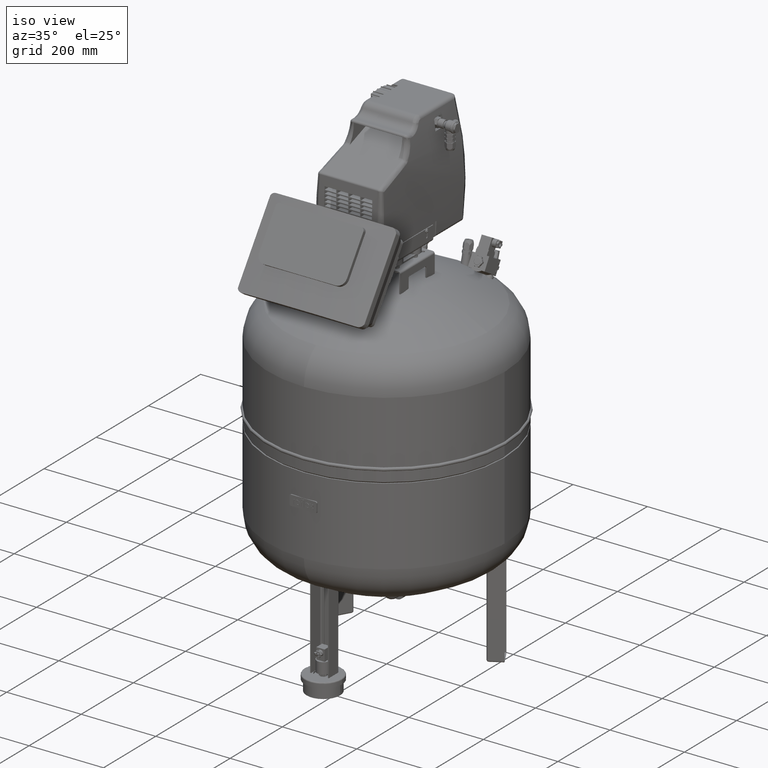
[diagram: clean part render]
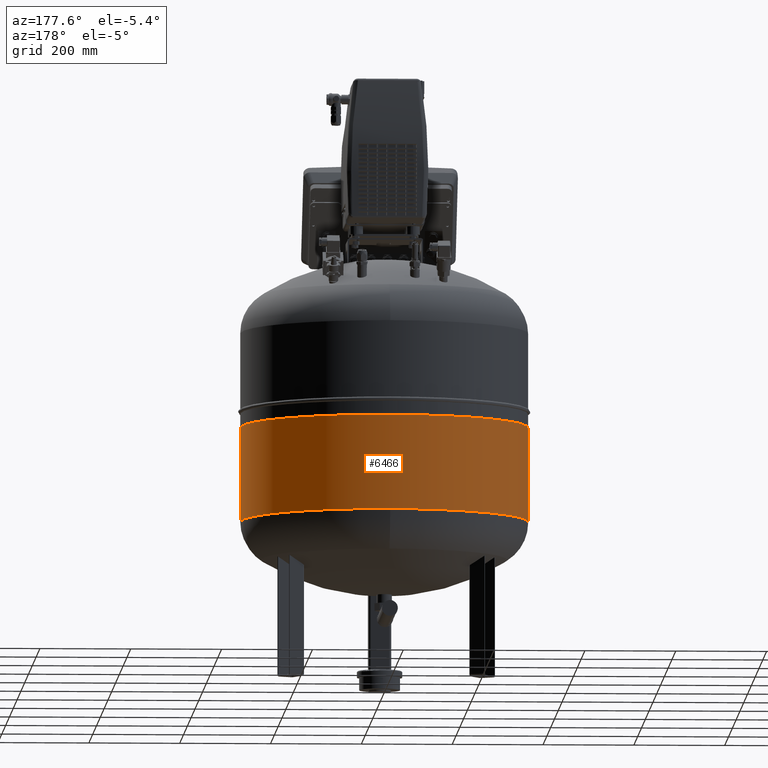
[diagram: tour spotlight — one face highlighted and labeled with its STEP entity id]
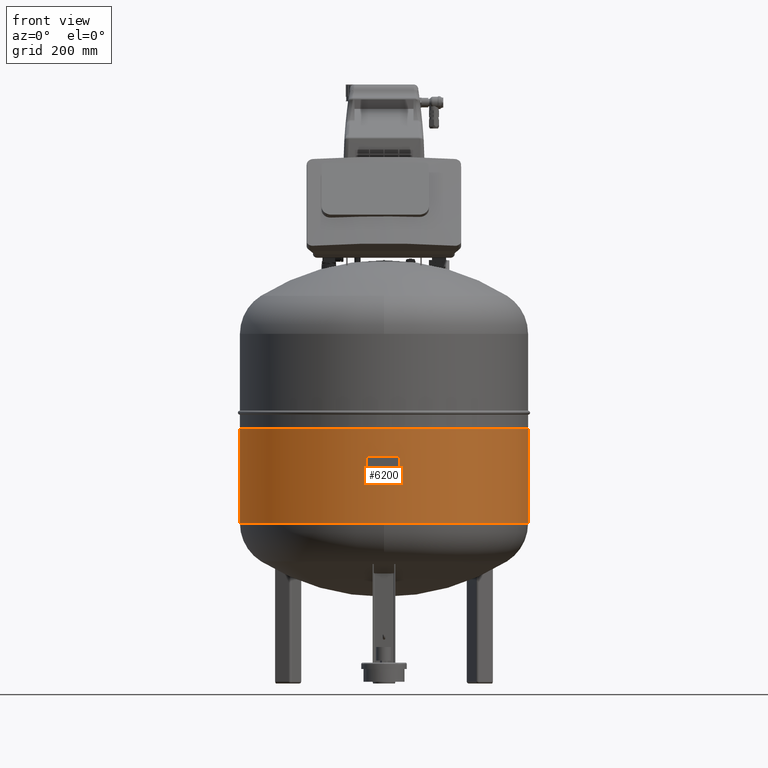
[diagram: tour spotlight — one face highlighted and labeled with its STEP entity id]
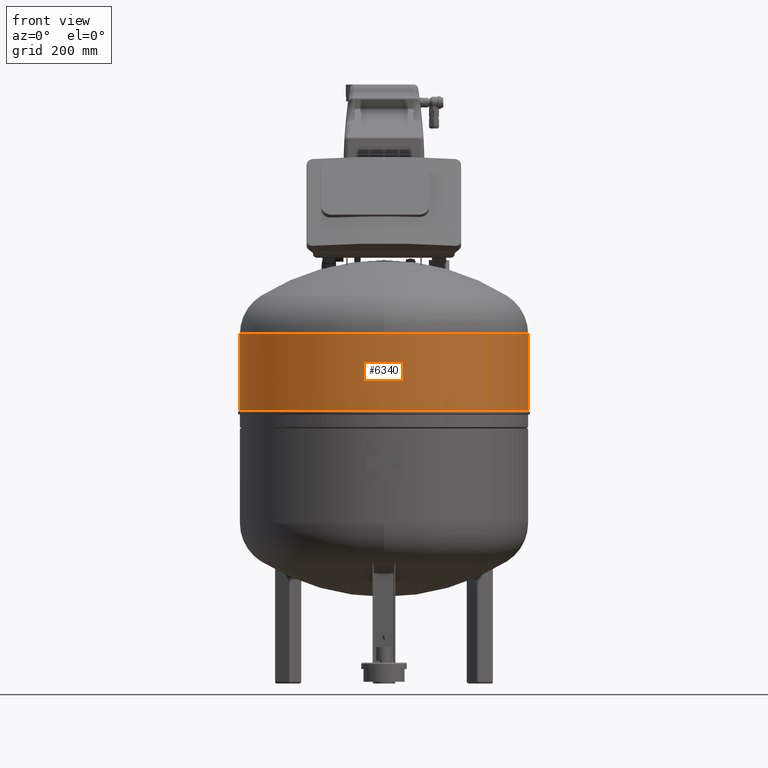
[diagram: tour spotlight — one face highlighted and labeled with its STEP entity id]
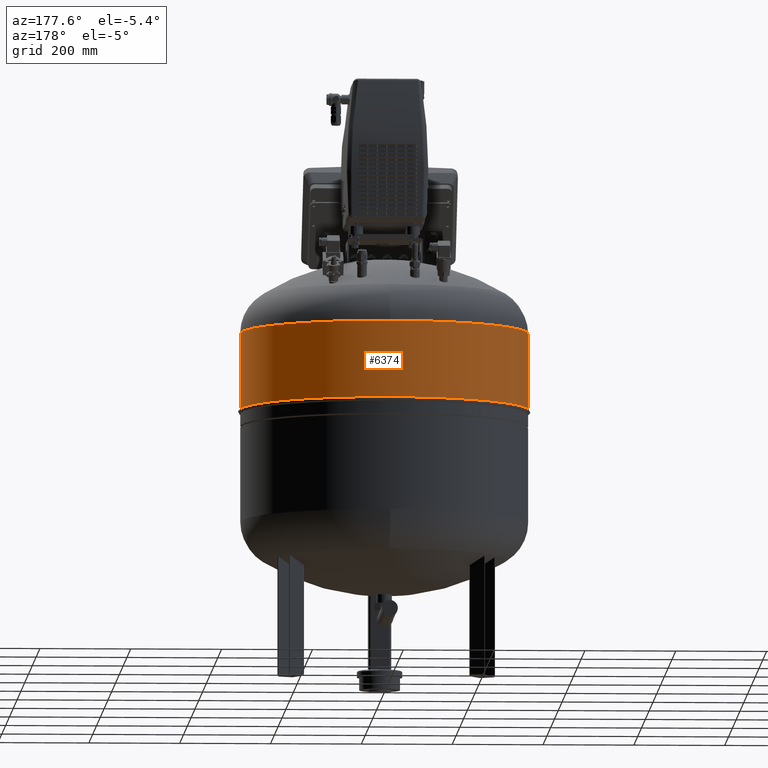
[diagram: tour spotlight — one face highlighted and labeled with its STEP entity id]
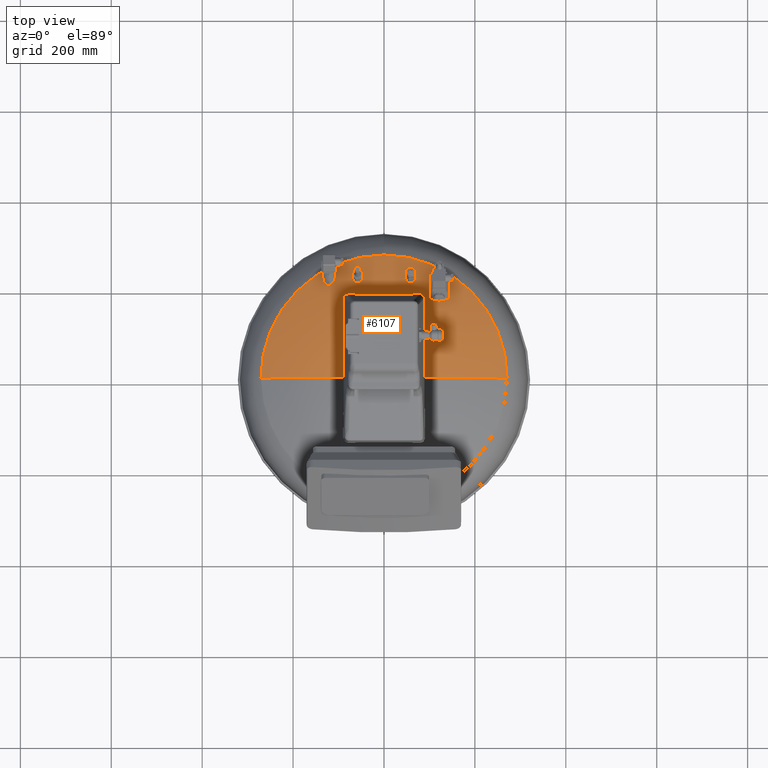
[diagram: tour spotlight — one face highlighted and labeled with its STEP entity id]
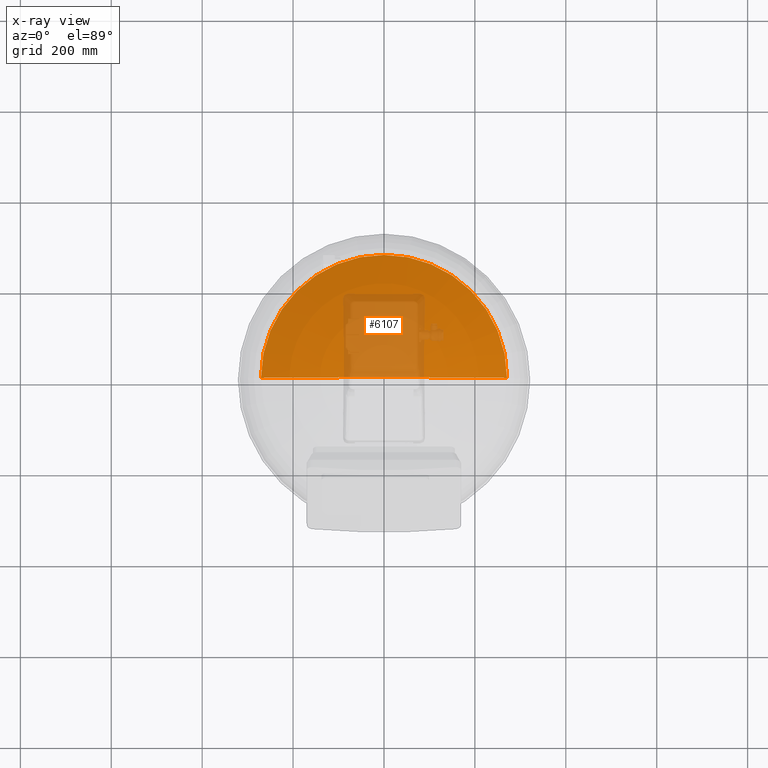
[diagram: x-ray of the same camera — body ghosted, this tour face saturated]
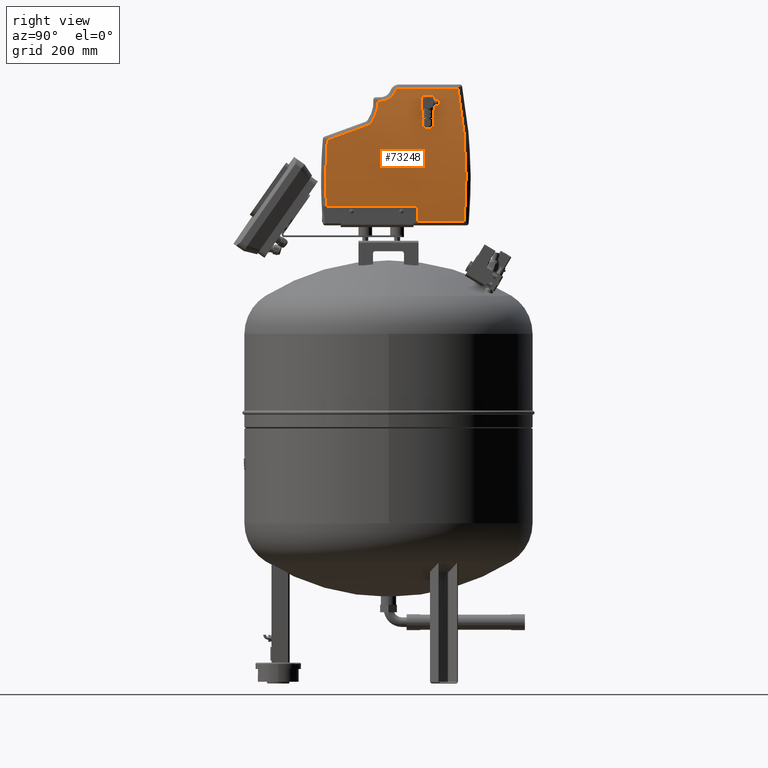
[diagram: tour spotlight — one face highlighted and labeled with its STEP entity id]
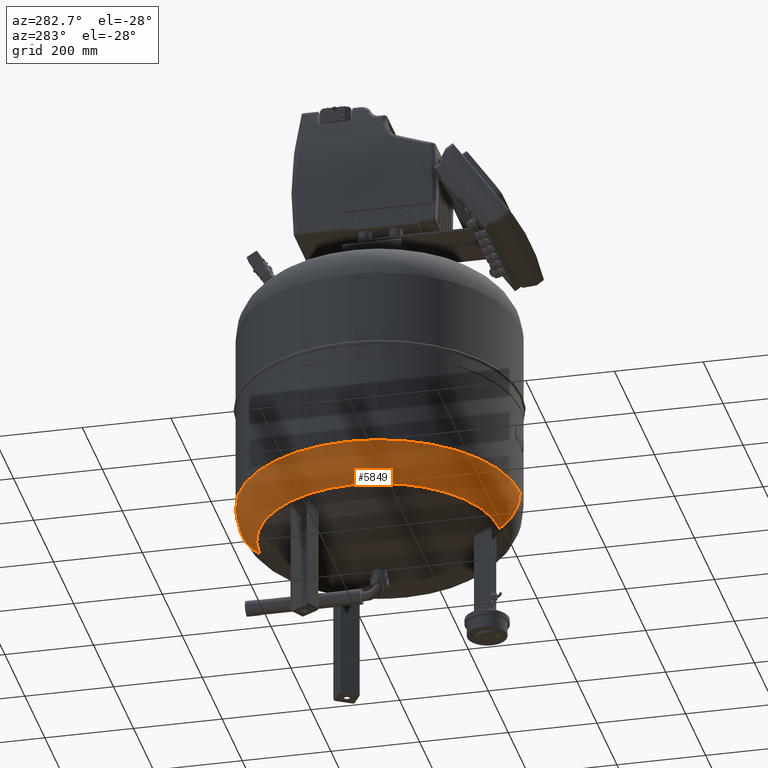
[diagram: tour spotlight — one face highlighted and labeled with its STEP entity id]
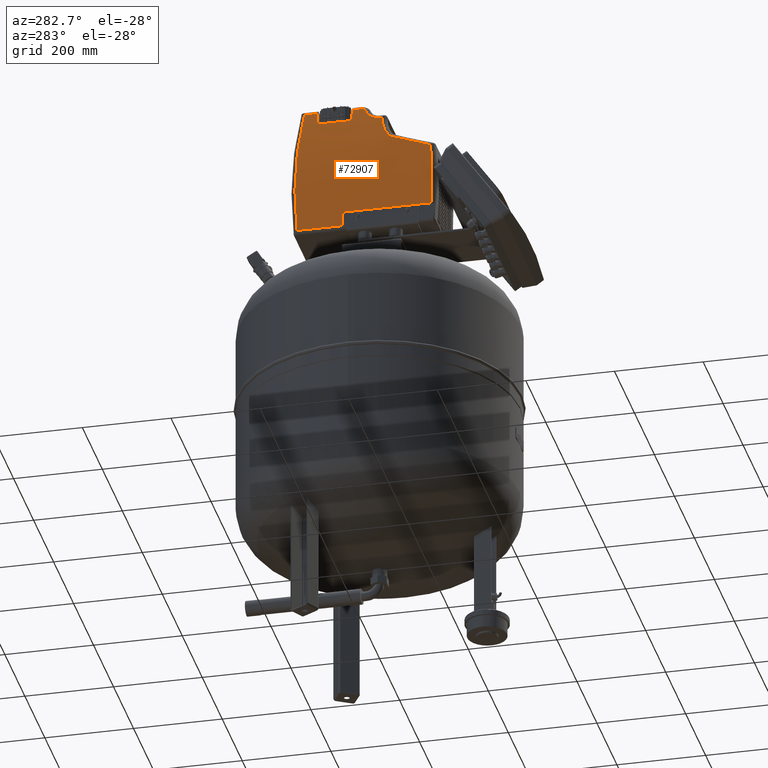
[diagram: tour spotlight — one face highlighted and labeled with its STEP entity id]
A machine part: a face-by-face anatomy tour. The part has 2542 B-rep faces; the first image is the clean iso view, then the 8 largest visible faces are spotlighted one at a time (largest first), each with its STEP entity span.

Face 1 — auxiliary view, entity #6466. In plain terms, the highlighted cylindrical surface (partial cylindrical patch) has radius 317 mm, axis along (-0, 0, -1).
Definition (entity closure, byte-faithful):
#6164=CARTESIAN_POINT('',(-317.0,0.0,353.00000000000011));
#6165=VERTEX_POINT('',#6164);
#6166=CARTESIAN_POINT('',(-316.99999999999994,0.0,561.0));
#6167=VERTEX_POINT('',#6166);
#6168=CARTESIAN_POINT('',(-317.0,0.0,353.00000000000011));
#6169=DIRECTION('',(0.0,0.0,1.0));
#6170=VECTOR('',#6169,207.99999999999989);
#6171=LINE('',#6168,#6170);
#6172=EDGE_CURVE('',#6165,#6167,#6171,.T.);
#6174=CARTESIAN_POINT('',(317.0,-3.882002E-014,352.99999999999989));
#6175=VERTEX_POINT('',#6174);
#6183=CARTESIAN_POINT('',(317.0,-3.882002E-014,560.99999999999989));
#6184=VERTEX_POINT('',#6183);
#6185=CARTESIAN_POINT('',(317.0,-3.882002E-014,352.99999999999989));
#6186=DIRECTION('',(0.0,0.0,1.0));
#6187=VECTOR('',#6186,208.0);
#6188=LINE('',#6185,#6187);
#6189=EDGE_CURVE('',#6175,#6184,#6188,.T.);
#6434=CARTESIAN_POINT('',(0.0,0.0,561.0));
#6435=DIRECTION('',(0.0,0.0,-1.0));
#6436=DIRECTION('',(-1.0,0.0,0.0));
#6437=AXIS2_PLACEMENT_3D('',#6434,#6435,#6436);
#6438=CIRCLE('',#6437,316.99999999999994);
#6439=EDGE_CURVE('',#6167,#6184,#6438,.T.);
#6449=CARTESIAN_POINT('',(-2.108031E-014,0.0,457.0));
#6450=DIRECTION('',(-2.026953E-016,0.0,-1.0));
#6451=DIRECTION('',(-1.0,0.0,0.0));
#6452=AXIS2_PLACEMENT_3D('',#6449,#6450,#6451);
#6453=CYLINDRICAL_SURFACE('',#6452,317.0);
#6454=ORIENTED_EDGE('',*,*,#6172,.T.);
#6455=ORIENTED_EDGE('',*,*,#6439,.T.);
#6456=ORIENTED_EDGE('',*,*,#6189,.F.);
#6457=CARTESIAN_POINT('',(-4.216062E-014,0.0,353.0));
#6458=DIRECTION('',(0.0,0.0,-1.0));
#6459=DIRECTION('',(-1.0,0.0,0.0));
#6460=AXIS2_PLACEMENT_3D('',#6457,#6458,#6459);
#6461=CIRCLE('',#6460,317.0);
#6462=EDGE_CURVE('',#6165,#6175,#6461,.T.);
#6463=ORIENTED_EDGE('',*,*,#6462,.F.);
#6464=EDGE_LOOP('',(#6454,#6455,#6456,#6463));
#6465=FACE_OUTER_BOUND('',#6464,.T.);
#6466=ADVANCED_FACE('',(#6465),#6453,.T.);

Face 2 — front view, entity #6200. In plain terms, the highlighted cylindrical surface (partial cylindrical patch) has radius 317 mm, axis along (-0, 0, -1).
Definition (entity closure, byte-faithful):
#6159=CARTESIAN_POINT('',(-2.108031E-014,0.0,457.0));
#6160=DIRECTION('',(-2.026953E-016,0.0,-1.0));
#6161=DIRECTION('',(-1.0,0.0,0.0));
#6162=AXIS2_PLACEMENT_3D('',#6159,#6160,#6161);
#6163=CYLINDRICAL_SURFACE('',#6162,317.0);
#6164=CARTESIAN_POINT('',(-317.0,0.0,353.00000000000011));
#6165=VERTEX_POINT('',#6164);
#6166=CARTESIAN_POINT('',(-316.99999999999994,0.0,561.0));
#6167=VERTEX_POINT('',#6166);
#6168=CARTESIAN_POINT('',(-317.0,0.0,353.00000000000011));
#6169=DIRECTION('',(0.0,0.0,1.0));
#6170=VECTOR('',#6169,207.99999999999989);
#6171=LINE('',#6168,#6170);
#6172=EDGE_CURVE('',#6165,#6167,#6171,.T.);
#6173=ORIENTED_EDGE('',*,*,#6172,.F.);
#6174=CARTESIAN_POINT('',(317.0,-3.882002E-014,352.99999999999989));
#6175=VERTEX_POINT('',#6174);
#6176=CARTESIAN_POINT('',(-4.216062E-014,0.0,353.0));
#6177=DIRECTION('',(0.0,0.0,-1.0));
#6178=DIRECTION('',(-1.0,0.0,0.0));
#6179=AXIS2_PLACEMENT_3D('',#6176,#6177,#6178);
#6180=CIRCLE('',#6179,317.0);
#6181=EDGE_CURVE('',#6175,#6165,#6180,.T.);
#6182=ORIENTED_EDGE('',*,*,#6181,.F.);
#6183=CARTESIAN_POINT('',(317.0,-3.882002E-014,560.99999999999989));
#6184=VERTEX_POINT('',#6183);
#6185=CARTESIAN_POINT('',(317.0,-3.882002E-014,352.99999999999989));
#6186=DIRECTION('',(0.0,0.0,1.0));
#6187=VECTOR('',#6186,208.0);
#6188=LINE('',#6185,#6187);
#6189=EDGE_CURVE('',#6175,#6184,#6188,.T.);
#6190=ORIENTED_EDGE('',*,*,#6189,.T.);
#6191=CARTESIAN_POINT('',(0.0,0.0,561.0));
#6192=DIRECTION('',(0.0,0.0,-1.0));
#6193=DIRECTION('',(-1.0,0.0,0.0));
#6194=AXIS2_PLACEMENT_3D('',#6191,#6192,#6193);
#6195=CIRCLE('',#6194,316.99999999999994);
#6196=EDGE_CURVE('',#6184,#6167,#6195,.T.);
#6197=ORIENTED_EDGE('',*,*,#6196,.T.);
#6198=EDGE_LOOP('',(#6173,#6182,#6190,#6197));
#6199=FACE_OUTER_BOUND('',#6198,.T.);
#6200=ADVANCED_FACE('',(#6199),#6163,.T.);

Face 3 — front view, entity #6340. In plain terms, the highlighted cylindrical surface (partial cylindrical patch) has radius 317 mm, axis along (-0, 0, -1).
Definition (entity closure, byte-faithful):
#6280=CARTESIAN_POINT('',(-316.99999999999994,0.0,600.40000000000009));
#6281=VERTEX_POINT('',#6280);
#6290=CARTESIAN_POINT('',(316.99999999999994,-3.882002E-014,600.39999999999986));
#6291=VERTEX_POINT('',#6290);
#6299=CARTESIAN_POINT('',(7.986194E-015,0.0,600.39999999999998));
#6300=DIRECTION('',(0.0,0.0,-1.0));
#6301=DIRECTION('',(-1.0,0.0,0.0));
#6302=AXIS2_PLACEMENT_3D('',#6299,#6300,#6301);
#6303=CIRCLE('',#6302,316.99999999999994);
#6304=EDGE_CURVE('',#6291,#6281,#6303,.T.);
#6309=CARTESIAN_POINT('',(2.507341E-014,0.0,684.70000000000005));
#6310=DIRECTION('',(-2.026953E-016,0.0,-1.0));
#6311=DIRECTION('',(-1.0,0.0,0.0));
#6312=AXIS2_PLACEMENT_3D('',#6309,#6310,#6311);
#6313=CYLINDRICAL_SURFACE('',#6312,316.99999999999994);
#6314=CARTESIAN_POINT('',(-317.0,0.0,769.00000000000011));
#6315=VERTEX_POINT('',#6314);
#6316=CARTESIAN_POINT('',(-316.99999999999994,0.0,600.40000000000009));
#6317=DIRECTION('',(0.0,0.0,1.0));
#6318=VECTOR('',#6317,168.60000000000002);
#6319=LINE('',#6316,#6318);
#6320=EDGE_CURVE('',#6281,#6315,#6319,.T.);
#6321=ORIENTED_EDGE('',*,*,#6320,.F.);
#6322=ORIENTED_EDGE('',*,*,#6304,.F.);
#6323=CARTESIAN_POINT('',(316.99999999999994,-3.882002E-014,769.0));
#6324=VERTEX_POINT('',#6323);
#6325=CARTESIAN_POINT('',(316.99999999999994,-3.882002E-014,600.39999999999986));
#6326=DIRECTION('',(0.0,0.0,1.0));
#6327=VECTOR('',#6326,168.60000000000014);
#6328=LINE('',#6325,#6327);
#6329=EDGE_CURVE('',#6291,#6324,#6328,.T.);
#6330=ORIENTED_EDGE('',*,*,#6329,.T.);
#6331=CARTESIAN_POINT('',(4.216062E-014,0.0,769.00000000000011));
#6332=DIRECTION('',(0.0,0.0,-1.0));
#6333=DIRECTION('',(-1.0,0.0,0.0));
#6334=AXIS2_PLACEMENT_3D('',#6331,#6332,#6333);
#6335=CIRCLE('',#6334,317.0);
#6336=EDGE_CURVE('',#6324,#6315,#6335,.T.);
#6337=ORIENTED_EDGE('',*,*,#6336,.T.);
#6338=EDGE_LOOP('',(#6321,#6322,#6330,#6337));
#6339=FACE_OUTER_BOUND('',#6338,.T.);
#6340=ADVANCED_FACE('',(#6339),#6313,.T.);

Face 4 — auxiliary view, entity #6374. In plain terms, the highlighted cylindrical surface (partial cylindrical patch) has radius 317 mm, axis along (-0, 0, -1).
Definition (entity closure, byte-faithful):
#6280=CARTESIAN_POINT('',(-316.99999999999994,0.0,600.40000000000009));
#6281=VERTEX_POINT('',#6280);
#6290=CARTESIAN_POINT('',(316.99999999999994,-3.882002E-014,600.39999999999986));
#6291=VERTEX_POINT('',#6290);
#6314=CARTESIAN_POINT('',(-317.0,0.0,769.00000000000011));
#6315=VERTEX_POINT('',#6314);
#6316=CARTESIAN_POINT('',(-316.99999999999994,0.0,600.40000000000009));
#6317=DIRECTION('',(0.0,0.0,1.0));
#6318=VECTOR('',#6317,168.60000000000002);
#6319=LINE('',#6316,#6318);
#6320=EDGE_CURVE('',#6281,#6315,#6319,.T.);
#6323=CARTESIAN_POINT('',(316.99999999999994,-3.882002E-014,769.0));
#6324=VERTEX_POINT('',#6323);
#6325=CARTESIAN_POINT('',(316.99999999999994,-3.882002E-014,600.39999999999986));
#6326=DIRECTION('',(0.0,0.0,1.0));
#6327=VECTOR('',#6326,168.60000000000014);
#6328=LINE('',#6325,#6327);
#6329=EDGE_CURVE('',#6291,#6324,#6328,.T.);
#6346=CARTESIAN_POINT('',(4.216062E-014,0.0,769.00000000000011));
#6347=DIRECTION('',(0.0,0.0,-1.0));
#6348=DIRECTION('',(-1.0,0.0,0.0));
#6349=AXIS2_PLACEMENT_3D('',#6346,#6347,#6348);
#6350=CIRCLE('',#6349,317.0);
#6351=EDGE_CURVE('',#6315,#6324,#6350,.T.);
#6357=CARTESIAN_POINT('',(2.507341E-014,0.0,684.70000000000005));
#6358=DIRECTION('',(-2.026953E-016,0.0,-1.0));
#6359=DIRECTION('',(-1.0,0.0,0.0));
#6360=AXIS2_PLACEMENT_3D('',#6357,#6358,#6359);
#6361=CYLINDRICAL_SURFACE('',#6360,316.99999999999994);
#6362=ORIENTED_EDGE('',*,*,#6320,.T.);
#6363=ORIENTED_EDGE('',*,*,#6351,.T.);
#6364=ORIENTED_EDGE('',*,*,#6329,.F.);
#6365=CARTESIAN_POINT('',(7.986194E-015,0.0,600.39999999999998));
#6366=DIRECTION('',(0.0,0.0,-1.0));
#6367=DIRECTION('',(-1.0,0.0,0.0));
#6368=AXIS2_PLACEMENT_3D('',#6365,#6366,#6367);
#6369=CIRCLE('',#6368,316.99999999999994);
#6370=EDGE_CURVE('',#6281,#6291,#6369,.T.);
#6371=ORIENTED_EDGE('',*,*,#6370,.F.);
#6372=EDGE_LOOP('',(#6362,#6363,#6364,#6371));
#6373=FACE_OUTER_BOUND('',#6372,.T.);
#6374=ADVANCED_FACE('',(#6373),#6361,.T.);

Face 5 — top view, entity #6107. An x-ray twin of the same camera follows (body ghosted, this face saturated) — the face is partly hidden behind the body. In plain terms, the highlighted spherical surface has radius 509 mm.
Definition (entity closure, byte-faithful):
#6011=CARTESIAN_POINT('',(8.065826E-015,270.63902439024383,853.08643968129763));
#6012=VERTEX_POINT('',#6011);
#6037=CARTESIAN_POINT('',(-270.63902439024383,2.385415E-014,853.08643968129763));
#6038=VERTEX_POINT('',#6037);
#6046=CARTESIAN_POINT('',(-7.495146E-015,2.385415E-014,853.08643968129752));
#6047=DIRECTION('',(0.0,0.0,-1.0));
#6048=DIRECTION('',(-1.0,0.0,0.0));
#6049=AXIS2_PLACEMENT_3D('',#6046,#6047,#6048);
#6050=CIRCLE('',#6049,270.63902439024383);
#6051=EDGE_CURVE('',#6038,#6012,#6050,.T.);
#6061=CARTESIAN_POINT('',(-1.317408E-013,1.558363E-013,931.0));
#6062=VERTEX_POINT('',#6061);
#6063=CARTESIAN_POINT('',(270.63902439024383,1.558363E-013,853.08643968129752));
#6064=VERTEX_POINT('',#6063);
#6065=CARTESIAN_POINT('',(-1.005746E-013,1.558363E-013,421.99999999999994));
#6066=DIRECTION('',(0.0,1.0,0.0));
#6067=DIRECTION('',(1.0,0.0,0.0));
#6068=AXIS2_PLACEMENT_3D('',#6065,#6066,#6067);
#6069=CIRCLE('',#6068,509.00000000000006);
#6070=EDGE_CURVE('',#6062,#6064,#6069,.T.);
#6072=CARTESIAN_POINT('',(-1.005746E-013,1.558363E-013,421.99999999999994));
#6073=DIRECTION('',(0.0,-1.0,0.0));
#6074=DIRECTION('',(-1.0,0.0,0.0));
#6075=AXIS2_PLACEMENT_3D('',#6072,#6073,#6074);
#6076=CIRCLE('',#6075,509.00000000000006);
#6077=EDGE_CURVE('',#6062,#6038,#6076,.T.);
#6090=CARTESIAN_POINT('',(-1.005746E-013,1.558363E-013,421.99999999999994));
#6091=DIRECTION('',(0.0,0.0,1.0));
#6092=DIRECTION('',(1.0,0.0,0.0));
#6093=AXIS2_PLACEMENT_3D('',#6090,#6091,#6092);
#6094=SPHERICAL_SURFACE('',#6093,509.00000000000006);
#6095=ORIENTED_EDGE('',*,*,#6070,.T.);
#6096=CARTESIAN_POINT('',(-7.495146E-015,2.385415E-014,853.08643968129752));
#6097=DIRECTION('',(0.0,0.0,-1.0));
#6098=DIRECTION('',(-1.0,0.0,0.0));
#6099=AXIS2_PLACEMENT_3D('',#6096,#6097,#6098);
#6100=CIRCLE('',#6099,270.63902439024383);
#6101=EDGE_CURVE('',#6012,#6064,#6100,.T.);
#6102=ORIENTED_EDGE('',*,*,#6101,.F.);
#6103=ORIENTED_EDGE('',*,*,#6051,.F.);
#6104=ORIENTED_EDGE('',*,*,#6077,.F.);
#6105=EDGE_LOOP('',(#6095,#6102,#6103,#6104));
#6106=FACE_OUTER_BOUND('',#6105,.T.);
#6107=ADVANCED_FACE('',(#6106),#6094,.T.);

Face 6 — right view, entity #73248. In plain terms, the highlighted cylindrical surface (partial cylindrical patch) has radius 1323.98 mm, axis along (-0, -1, 0).
Definition (entity closure, byte-faithful):
#72593=CARTESIAN_POINT('',(88.601441545151232,64.994999999999919,1049.9999999999768));
#72594=VERTEX_POINT('',#72593);
#72595=CARTESIAN_POINT('',(86.691151156861395,64.994999999999919,1017.2934525354472));
#72596=VERTEX_POINT('',#72595);
#72597=CARTESIAN_POINT('',(-1233.9793513774807,64.995000000000147,1110.8388779159679));
#72598=DIRECTION('',(1.825887E-016,1.0,-1.422539E-017));
#72599=DIRECTION('',(-0.996978804846285,1.831420E-016,0.077674079893313));
#72600=AXIS2_PLACEMENT_3D('',#72597,#72598,#72599);
#72601=CIRCLE('',#72600,1323.9793513774807);
#72602=EDGE_CURVE('',#72594,#72596,#72601,.T.);
#72693=CARTESIAN_POINT('',(88.601441545151204,-136.8903313762531,1049.9999999999768));
#72694=VERTEX_POINT('',#72693);
#72695=CARTESIAN_POINT('',(88.601441545151204,-136.8903313762531,1049.9999999999768));
#72696=DIRECTION('',(0.0,1.0,0.0));
#72697=VECTOR('',#72696,201.88533137625302);
#72698=LINE('',#72695,#72697);
#72699=EDGE_CURVE('',#72694,#72594,#72698,.T.);
#73080=CARTESIAN_POINT('',(-1233.9793513774807,16.000000000000142,1110.8388779159679));
#73081=DIRECTION('',(-1.836970E-016,-1.0,0.0));
#73082=DIRECTION('',(-0.996978804846285,1.831420E-016,0.077674079893313));
#73083=AXIS2_PLACEMENT_3D('',#73080,#73081,#73082);
#73084=CYLINDRICAL_SURFACE('',#73083,1323.9793513774807);
#73085=ORIENTED_EDGE('',*,*,#72699,.T.);
#73086=ORIENTED_EDGE('',*,*,#72602,.T.);
#73087=CARTESIAN_POINT('',(86.691151156861423,166.84002823482629,1017.2934525354451));
#73088=VERTEX_POINT('',#73087);
#73089=CARTESIAN_POINT('',(86.691151156861423,166.84002823482629,1017.2934525354472));
#73090=DIRECTION('',(0.0,-1.0,0.0));
#73091=VECTOR('',#73090,101.84502823482637);
#73092=LINE('',#73089,#73091);
#73093=EDGE_CURVE('',#73088,#72596,#73092,.T.);
#73094=ORIENTED_EDGE('',*,*,#73093,.F.);
#73095=CARTESIAN_POINT('',(75.010674275461696,152.69538403177663,1309.500488739608));
#73096=VERTEX_POINT('',#73095);
#73097=CARTESIAN_POINT('',(75.010762962781769,152.69550527546929,1309.4999414908045));
#73098=CARTESIAN_POINT('',(75.749191174399471,153.57893988197421,1304.6343747078738));
#73099=CARTESIAN_POINT('',(76.461548993900777,154.43101745255777,1299.7577192433773));
#73100=CARTESIAN_POINT('',(80.658761252774326,159.45088918635182,1269.8547665451092));
#73101=CARTESIAN_POINT('',(83.47624808203517,162.81815925040431,1244.5646340836993));
#73102=CARTESIAN_POINT('',(86.866661126282992,166.87730527744262,1203.2577082243224));
#73103=CARTESIAN_POINT('',(87.885595526410754,168.09946727365732,1187.3201279941857));
#73104=CARTESIAN_POINT('',(88.98066868086508,169.41888502649036,1163.3922541097099));
#73105=CARTESIAN_POINT('',(89.27361128093321,169.7732097195582,1155.4130024747235));
#73106=CARTESIAN_POINT('',(89.848011111689971,170.47262018923644,1134.6318474367647));
#73107=CARTESIAN_POINT('',(90.016545000868064,170.68393070829498,1121.8180408898106));
#73108=CARTESIAN_POINT('',(89.970200682689978,170.65961550538091,1088.4860353473566));
#73109=CARTESIAN_POINT('',(89.463987559396571,170.07910626780213,1067.9582769109406));
#73110=CARTESIAN_POINT('',(88.000738427995316,168.37361489012565,1037.4091205141578));
#73111=CARTESIAN_POINT('',(87.40245378163371,167.67397813078506,1027.3388147734222));
#73112=CARTESIAN_POINT('',(86.690899334655143,166.83976328187228,1017.2935985766566));
#73113=B_SPLINE_CURVE_WITH_KNOTS('',3,(#73097,#73098,#73099,#73100,#73101,#73102,#73103,#73104,#73105,#73106,#73107,#73108,#73109,#73110,#73111,#73112),.UNSPECIFIED.,.F.,.U.,(4,2,2,2,2,2,2,4),(5.175708728468305,6.663674528679406,14.279302561455872,19.039070081941162,21.418953842183807,25.226767858572039,31.319270284793209,34.322254463356607),.UNSPECIFIED.);
#73114=EDGE_CURVE('',#73096,#73088,#73113,.T.);
#73115=ORIENTED_EDGE('',*,*,#73114,.F.);
#73116=CARTESIAN_POINT('',(75.010674275462975,23.378822094593176,1309.5004887396003));
#73117=VERTEX_POINT('',#73116);
#73118=CARTESIAN_POINT('',(75.010674275462975,23.378822094593176,1309.5004887396003));
#73119=DIRECTION('',(0.0,1.0,0.0));
#73120=VECTOR('',#73119,129.31656193718345);
#73121=LINE('',#73118,#73120);
#73122=EDGE_CURVE('',#73117,#73096,#73121,.T.);
#73123=ORIENTED_EDGE('',*,*,#73122,.F.);
#73124=CARTESIAN_POINT('',(75.968142067331371,14.062405185042877,1303.0858214328646));
#73125=VERTEX_POINT('',#73124);
#73126=CARTESIAN_POINT('',(75.968142067331371,14.062405185042877,1303.0858214328646));
#73127=CARTESIAN_POINT('',(75.774639208175472,14.572791692858033,1304.4043265840448));
#73128=CARTESIAN_POINT('',(75.594013550638465,15.368017924427505,1305.6206469069359));
#73129=CARTESIAN_POINT('',(75.31106009799214,17.281877947123149,1307.5131370832557));
#73130=CARTESIAN_POINT('',(75.200384289232829,18.38269078104193,1308.2470566633378));
#73131=CARTESIAN_POINT('',(75.079804678601135,20.300030723949845,1309.0446928820934));
#73132=CARTESIAN_POINT('',(75.046436797480482,21.082352565038406,1309.2647430025788));
#73133=CARTESIAN_POINT('',(75.016423868216947,22.37686135668244,1309.4626156414724));
#73134=CARTESIAN_POINT('',(75.010674275463259,22.879657423610439,1309.5004887396008));
#73135=CARTESIAN_POINT('',(75.010674275463259,23.378822094593176,1309.5004887396008));
#73136=B_SPLINE_CURVE_WITH_KNOTS('',3,(#73126,#73127,#73128,#73129,#73130,#73131,#73132,#73133,#73134,#73135),.UNSPECIFIED.,.F.,.U.,(4,2,2,2,4),(0.0,0.425288299677221,0.8086467669919,1.048245809063575,1.197995210358371),.UNSPECIFIED.);
#73137=EDGE_CURVE('',#73125,#73117,#73136,.T.);
#73138=ORIENTED_EDGE('',*,*,#73137,.F.);
#73139=CARTESIAN_POINT('',(78.991967721078936,-17.703577952971813,1281.2138705015077));
#73140=VERTEX_POINT('',#73139);
#73141=CARTESIAN_POINT('',(78.991967721078936,-17.703577952971813,1281.2138705015077));
#73142=CARTESIAN_POINT('',(78.991967721078936,-12.872934264143026,1281.2138705015077));
#73143=CARTESIAN_POINT('',(78.856169250862393,-8.026455301410891,1282.2691123584559));
#73144=CARTESIAN_POINT('',(78.351409843855492,0.337770782146578,1286.0890785328079));
#73145=CARTESIAN_POINT('',(78.00029727847047,4.00334899919531,1288.7178420405432));
#73146=CARTESIAN_POINT('',(77.290579667260403,8.860782495330369,1293.8593023758297));
#73147=CARTESIAN_POINT('',(76.978800238860231,10.510488883908494,1296.0842229453101));
#73148=CARTESIAN_POINT('',(76.424662485137617,12.715649074465688,1299.9549934404354));
#73149=CARTESIAN_POINT('',(76.200315151836435,13.45002141807359,1301.5038220287179));
#73150=CARTESIAN_POINT('',(75.968142067331371,14.062405185042877,1303.0858214328646));
#73151=B_SPLINE_CURVE_WITH_KNOTS('',3,(#73141,#73142,#73143,#73144,#73145,#73146,#73147,#73148,#73149,#73150),.UNSPECIFIED.,.F.,.U.,(4,2,2,2,4),(0.0,1.449193106648585,2.755508019683932,3.571954840331023,4.082234103235455),.UNSPECIFIED.);
#73152=EDGE_CURVE('',#73140,#73125,#73151,.T.);
#73153=ORIENTED_EDGE('',*,*,#73152,.F.);
#73154=CARTESIAN_POINT('',(78.991967721078964,-22.870510156187578,1281.2138705015079));
#73155=VERTEX_POINT('',#73154);
#73156=CARTESIAN_POINT('',(78.991967721078922,-22.870510156187578,1281.2138705015077));
#73157=DIRECTION('',(0.0,1.0,0.0));
#73158=VECTOR('',#73157,5.166932203215765);
#73159=LINE('',#73156,#73158);
#73160=EDGE_CURVE('',#73155,#73140,#73159,.T.);
#73161=ORIENTED_EDGE('',*,*,#73160,.F.);
#73162=CARTESIAN_POINT('',(84.20194266078903,-37.948665745968441,1234.6104373370545));
#73163=VERTEX_POINT('',#73162);
#73164=CARTESIAN_POINT('',(84.20194266078903,-37.948665745968441,1234.6104373370545));
#73165=CARTESIAN_POINT('',(83.453209226751483,-32.278544173793847,1242.5845342264015));
#73166=CARTESIAN_POINT('',(82.514354542700772,-28.001995038342869,1251.752209261716));
#73167=CARTESIAN_POINT('',(80.688490253723415,-23.827392375093353,1267.722756467861));
#73168=CARTESIAN_POINT('',(79.867747758794422,-22.928401493692576,1274.4642158946417));
#73169=CARTESIAN_POINT('',(78.991955219558463,-22.870529006692635,1281.2139404177146));
#73170=B_SPLINE_CURVE_WITH_KNOTS('',3,(#73164,#73165,#73166,#73167,#73168,#73169),.UNSPECIFIED.,.F.,.U.,(4,2,4),(0.0,2.929139542646406,4.937938804636223),.UNSPECIFIED.);
#73171=EDGE_CURVE('',#73163,#73155,#73170,.T.);
#73172=ORIENTED_EDGE('',*,*,#73171,.F.);
#73173=CARTESIAN_POINT('',(84.858153322598696,-47.366049054652279,1227.4105686062994));
#73174=VERTEX_POINT('',#73173);
#73175=CARTESIAN_POINT('',(84.858153322598696,-47.366049054652279,1227.4105686062994));
#73176=CARTESIAN_POINT('',(84.815011293705169,-46.035165007291511,1227.8986573128859));
#73177=CARTESIAN_POINT('',(84.758538704623305,-44.74600306327315,1228.534623010823));
#73178=CARTESIAN_POINT('',(84.628055117474048,-42.458637744862784,1229.9871402117074));
#73179=CARTESIAN_POINT('',(84.556664386996033,-41.446473828201619,1230.7758862215198));
#73180=CARTESIAN_POINT('',(84.425031228073181,-39.928972722004431,1232.2123288658595));
#73181=CARTESIAN_POINT('',(84.370746594143554,-39.377724939186322,1232.8008692765477));
#73182=CARTESIAN_POINT('',(84.277360401101447,-38.544111576846802,1233.8051953627009));
#73183=CARTESIAN_POINT('',(84.240202474099704,-38.238405435607405,1234.202965940108));
#73184=CARTESIAN_POINT('',(84.20194266078903,-37.948665745968441,1234.6104373370545));
#73185=B_SPLINE_CURVE_WITH_KNOTS('',3,(#73175,#73176,#73177,#73178,#73179,#73180,#73181,#73182,#73183,#73184),.UNSPECIFIED.,.F.,.U.,(4,2,2,2,4),(0.0,0.425083278759825,0.808256938486993,1.047740475816473,1.197417686647397),.UNSPECIFIED.);
#73186=EDGE_CURVE('',#73174,#73163,#73185,.T.);
#73187=ORIENTED_EDGE('',*,*,#73186,.F.);
#73188=CARTESIAN_POINT('',(87.295067870577213,-134.5751554767904,1195.4274818448775));
#73189=VERTEX_POINT('',#73188);
#73190=CARTESIAN_POINT('',(-1233.9793513774807,-365.22508045632901,1110.8388779159679));
#73191=DIRECTION('',(-1.492042E-016,-0.344315519300506,0.938853994595978));
#73192=DIRECTION('',(1.092149E-016,0.938853994595977,0.344315519300505));
#73193=AXIS2_PLACEMENT_3D('',#73190,#73191,#73192);
#73194=ELLIPSE('',#73193,3845.2502927175988,1323.979351377481);
#73195=EDGE_CURVE('',#73189,#73174,#73194,.T.);
#73196=ORIENTED_EDGE('',*,*,#73195,.F.);
#73197=CARTESIAN_POINT('',(88.601418660295366,-136.89031026926349,1049.9995772660857));
#73198=CARTESIAN_POINT('',(89.660823300275638,-138.02377199539691,1073.0304808424064));
#73199=CARTESIAN_POINT('',(90.119073835978782,-138.44490755997126,1096.1010885454452));
#73200=CARTESIAN_POINT('',(89.875831982586988,-137.95358120155615,1134.7237500115871));
#73201=CARTESIAN_POINT('',(89.50364661138704,-137.43088998401149,1150.2899916399738));
#73202=CARTESIAN_POINT('',(88.533597214534069,-136.15845459943452,1173.6194644600737));
#73203=CARTESIAN_POINT('',(88.141675589328457,-135.65296893456897,1181.3926069017764));
#73204=CARTESIAN_POINT('',(87.557631641494396,-134.90853713373767,1191.2485183987806));
#73205=CARTESIAN_POINT('',(87.428813645512491,-134.7447742592154,1193.3383162332157));
#73206=CARTESIAN_POINT('',(87.295060232162058,-134.57514743083911,1195.4274816699667));
#73207=B_SPLINE_CURVE_WITH_KNOTS('',3,(#73197,#73198,#73199,#73200,#73201,#73202,#73203,#73204,#73205,#73206),.UNSPECIFIED.,.F.,.U.,(4,2,2,2,4),(7.009786163870219,13.87429059637191,18.499054128495882,20.811435894557867,21.433886595432323),.UNSPECIFIED.);
#73208=EDGE_CURVE('',#72694,#73189,#73207,.T.);
#73209=ORIENTED_EDGE('',*,*,#73208,.F.);
#73210=EDGE_LOOP('',(#73085,#73086,#73094,#73115,#73123,#73138,#73153,#73161,#73172,#73187,#73196,#73209));
#73211=FACE_OUTER_BOUND('',#73210,.T.);
#73212=CARTESIAN_POINT('',(81.227216352497408,71.770557485784849,1262.9999999999766));
#73213=VERTEX_POINT('',#73212);
#73214=CARTESIAN_POINT('',(77.408710362837724,71.770557485784849,1292.9999999999764));
#73215=VERTEX_POINT('',#73214);
#73216=CARTESIAN_POINT('',(-1233.9793513774807,71.77055748578519,1110.8388779159679));
#73217=DIRECTION('',(-1.825887E-016,-1.0,1.422539E-017));
#73218=DIRECTION('',(-0.996978804846285,1.831420E-016,0.077674079893313));
#73219=AXIS2_PLACEMENT_3D('',#73216,#73217,#73218);
#73220=CIRCLE('',#73219,1323.9793513774807);
#73221=EDGE_CURVE('',#73213,#73215,#73220,.T.);
#73222=ORIENTED_EDGE('',*,*,#73221,.T.);
#73223=CARTESIAN_POINT('',(77.408710362837724,101.77055748578485,1292.9999999999764));
#73224=VERTEX_POINT('',#73223);
#73225=CARTESIAN_POINT('',(77.408710362837738,71.770557485784849,1292.9999999999766));
#73226=DIRECTION('',(0.0,1.0,0.0));
#73227=VECTOR('',#73226,30.0);
#73228=LINE('',#73225,#73227);
#73229=EDGE_CURVE('',#73215,#73224,#73228,.T.);
#73230=ORIENTED_EDGE('',*,*,#73229,.T.);
#73231=CARTESIAN_POINT('',(81.227216352497436,101.77055748578485,1262.9999999999766));
#73232=VERTEX_POINT('',#73231);
#73233=CARTESIAN_POINT('',(-1233.9793513774807,101.77055748578519,1110.8388779159679));
#73234=DIRECTION('',(1.825887E-016,1.0,-1.422539E-017));
#73235=DIRECTION('',(-0.996978804846285,1.831420E-016,0.077674079893313));
#73236=AXIS2_PLACEMENT_3D('',#73233,#73234,#73235);
#73237=CIRCLE('',#73236,1323.9793513774807);
#73238=EDGE_CURVE('',#73224,#73232,#73237,.T.);
#73239=ORIENTED_EDGE('',*,*,#73238,.T.);
#73240=CARTESIAN_POINT('',(81.227216352497422,101.77055748578485,1262.9999999999766));
#73241=DIRECTION('',(0.0,-1.0,0.0));
#73242=VECTOR('',#73241,30.0);
#73243=LINE('',#73240,#73242);
#73244=EDGE_CURVE('',#73232,#73213,#73243,.T.);
#73245=ORIENTED_EDGE('',*,*,#73244,.T.);
#73246=EDGE_LOOP('',(#73222,#73230,#73239,#73245));
#73247=FACE_BOUND('',#73246,.T.);
#73248=ADVANCED_FACE('',(#73211,#73247),#73084,.T.);

Face 7 — auxiliary view, entity #5849. In plain terms, the highlighted toroidal blend (fillet) surface has major radius 218 mm and minor (blend) radius 99 mm.
Definition (entity closure, byte-faithful):
#5754=CARTESIAN_POINT('',(-317.00000000000006,-2.971473E-014,352.75944937262858));
#5755=VERTEX_POINT('',#5754);
#5779=CARTESIAN_POINT('',(-3.882002E-014,317.0,352.75944937262869));
#5780=VERTEX_POINT('',#5779);
#5788=CARTESIAN_POINT('',(-1.556097E-014,-2.971473E-014,352.75944937262864));
#5789=DIRECTION('',(0.0,0.0,1.0));
#5790=DIRECTION('',(-1.0,0.0,0.0));
#5791=AXIS2_PLACEMENT_3D('',#5788,#5789,#5790);
#5792=CIRCLE('',#5791,317.00000000000006);
#5793=EDGE_CURVE('',#5780,#5755,#5792,.T.);
#5798=CARTESIAN_POINT('',(0.0,-2.971473E-014,352.75944937262864));
#5799=DIRECTION('',(-9.619823E-017,-1.836970E-016,1.0));
#5800=DIRECTION('',(0.0,-1.0,0.0));
#5801=AXIS2_PLACEMENT_3D('',#5798,#5799,#5800);
#5802=TOROIDAL_SURFACE('',#5801,218.0,99.0);
#5803=CARTESIAN_POINT('',(-3.021869E-030,-317.00000000000011,352.75944937262858));
#5804=VERTEX_POINT('',#5803);
#5805=CARTESIAN_POINT('',(8.065826E-015,-270.63902439024383,268.91356031870237));
#5806=VERTEX_POINT('',#5805);
#5807=CARTESIAN_POINT('',(0.0,-218.00000000000003,352.75944937262858));
#5808=DIRECTION('',(1.0,0.0,0.0));
#5809=DIRECTION('',(0.0,-1.0,0.0));
#5810=AXIS2_PLACEMENT_3D('',#5807,#5808,#5809);
#5811=CIRCLE('',#5810,99.0);
#5812=EDGE_CURVE('',#5804,#5806,#5811,.T.);
#5813=ORIENTED_EDGE('',*,*,#5812,.F.);
#5814=CARTESIAN_POINT('',(-1.556097E-014,-2.971473E-014,352.75944937262864));
#5815=DIRECTION('',(0.0,0.0,1.0));
#5816=DIRECTION('',(-1.0,0.0,0.0));
#5817=AXIS2_PLACEMENT_3D('',#5814,#5815,#5816);
#5818=CIRCLE('',#5817,317.00000000000006);
#5819=EDGE_CURVE('',#5755,#5804,#5818,.T.);
#5820=ORIENTED_EDGE('',*,*,#5819,.F.);
#5821=ORIENTED_EDGE('',*,*,#5793,.F.);
#5822=CARTESIAN_POINT('',(-2.507680E-014,270.63902439024383,268.91356031870248));
#5823=VERTEX_POINT('',#5822);
#5824=CARTESIAN_POINT('',(-2.669642E-014,217.99999999999997,352.75944937262869));
#5825=DIRECTION('',(-1.0,0.0,0.0));
#5826=DIRECTION('',(0.0,1.0,0.0));
#5827=AXIS2_PLACEMENT_3D('',#5824,#5825,#5826);
#5828=CIRCLE('',#5827,99.0);
#5829=EDGE_CURVE('',#5780,#5823,#5828,.T.);
#5830=ORIENTED_EDGE('',*,*,#5829,.T.);
#5831=CARTESIAN_POINT('',(-270.63902439024383,-1.431249E-014,268.91356031870242));
#5832=VERTEX_POINT('',#5831);
#5833=CARTESIAN_POINT('',(-7.495146E-015,-1.431249E-014,268.91356031870242));
#5834=DIRECTION('',(0.0,0.0,1.0));
#5835=DIRECTION('',(-1.0,0.0,0.0));
#5836=AXIS2_PLACEMENT_3D('',#5833,#5834,#5835);
#5837=CIRCLE('',#5836,270.63902439024383);
#5838=EDGE_CURVE('',#5823,#5832,#5837,.T.);
#5839=ORIENTED_EDGE('',*,*,#5838,.T.);
#5840=CARTESIAN_POINT('',(-7.495146E-015,-1.431249E-014,268.91356031870242));
#5841=DIRECTION('',(0.0,0.0,1.0));
#5842=DIRECTION('',(-1.0,0.0,0.0));
#5843=AXIS2_PLACEMENT_3D('',#5840,#5841,#5842);
#5844=CIRCLE('',#5843,270.63902439024383);
#5845=EDGE_CURVE('',#5832,#5806,#5844,.T.);
#5846=ORIENTED_EDGE('',*,*,#5845,.T.);
#5847=EDGE_LOOP('',(#5813,#5820,#5821,#5830,#5839,#5846));
#5848=FACE_OUTER_BOUND('',#5847,.T.);
#5849=ADVANCED_FACE('',(#5848),#5802,.T.);

Face 8 — auxiliary view, entity #72907. In plain terms, the highlighted cylindrical surface (partial cylindrical patch) has radius 1323.98 mm, axis along (-0, -1, 0).
Definition (entity closure, byte-faithful):
#72464=CARTESIAN_POINT('',(-88.601441545151005,64.994999999999919,1049.9999999999768));
#72465=VERTEX_POINT('',#72464);
#72466=CARTESIAN_POINT('',(-88.601441545151431,-136.8903313762531,1049.9999999999768));
#72467=VERTEX_POINT('',#72466);
#72468=CARTESIAN_POINT('',(-88.60144154515099,64.994999999999919,1049.9999999999768));
#72469=DIRECTION('',(0.0,-1.0,0.0));
#72470=VECTOR('',#72469,201.88533137625302);
#72471=LINE('',#72468,#72470);
#72472=EDGE_CURVE('',#72465,#72467,#72471,.T.);
#72567=CARTESIAN_POINT('',(-86.691151156861679,64.994999999999919,1017.2934525354474));
#72568=VERTEX_POINT('',#72567);
#72569=CARTESIAN_POINT('',(1233.9793513775155,64.994999999999692,1110.8388779159684));
#72570=DIRECTION('',(1.791997E-016,1.0,-2.838878E-017));
#72571=DIRECTION('',(0.987682942333179,-1.814344E-016,-0.156468544519573));
#72572=AXIS2_PLACEMENT_3D('',#72569,#72570,#72571);
#72573=CIRCLE('',#72572,1323.9793513775155);
#72574=EDGE_CURVE('',#72568,#72465,#72573,.T.);
#72717=CARTESIAN_POINT('',(1233.9793513775155,15.999999999999687,1110.8388779159684));
#72718=DIRECTION('',(-1.836970E-016,-1.0,0.0));
#72719=DIRECTION('',(0.987682942333179,-1.814344E-016,-0.156468544519573));
#72720=AXIS2_PLACEMENT_3D('',#72717,#72718,#72719);
#72721=CYLINDRICAL_SURFACE('',#72720,1323.9793513775155);
#72722=ORIENTED_EDGE('',*,*,#72574,.T.);
#72723=ORIENTED_EDGE('',*,*,#72472,.T.);
#72724=CARTESIAN_POINT('',(-87.295067870577782,-134.57515547679336,1195.4274818448755));
#72725=VERTEX_POINT('',#72724);
#72726=CARTESIAN_POINT('',(-87.295004678420554,-134.57508892891801,1195.4274579289149));
#72727=CARTESIAN_POINT('',(-87.818475922252105,-135.23896220950346,1187.2507827073723));
#72728=CARTESIAN_POINT('',(-88.266708977992295,-135.81345966165108,1179.0596054801474));
#72729=CARTESIAN_POINT('',(-88.998204002192409,-136.76531933841883,1162.9401926424832));
#72730=CARTESIAN_POINT('',(-89.286669770857458,-137.14884505510949,1155.0126225959871));
#72731=CARTESIAN_POINT('',(-89.851392551042011,-137.92642740395931,1134.3901157820969));
#72732=CARTESIAN_POINT('',(-90.016389170328637,-138.18864127896731,1121.6887107505968));
#72733=CARTESIAN_POINT('',(-89.971335837013811,-138.3055728303635,1089.3292023428253));
#72734=CARTESIAN_POINT('',(-89.505080103293892,-137.85711739995949,1069.6451606004002));
#72735=CARTESIAN_POINT('',(-88.601438893439877,-136.89032866135139,1049.999985807681));
#72736=B_SPLINE_CURVE_WITH_KNOTS('',3,(#72726,#72727,#72728,#72729,#72730,#72731,#72732,#72733,#72734,#72735),.UNSPECIFIED.,.F.,.U.,(4,2,2,2,4),(16.448076188778494,18.893873394847468,21.255607569203402,25.034382248172896,30.88907573413724),.UNSPECIFIED.);
#72737=EDGE_CURVE('',#72725,#72467,#72736,.T.);
#72738=ORIENTED_EDGE('',*,*,#72737,.F.);
#72739=CARTESIAN_POINT('',(-84.858153322599094,-47.366049054652279,1227.4105686062994));
#72740=VERTEX_POINT('',#72739);
#72741=CARTESIAN_POINT('',(1233.9793513775155,-365.22508045633015,1110.8388779159684));
#72742=DIRECTION('',(-3.163426E-016,-0.344315519300506,0.938853994595978));
#72743=DIRECTION('',(7.225804E-017,0.938853994595977,0.344315519300505));
#72744=AXIS2_PLACEMENT_3D('',#72741,#72742,#72743);
#72745=ELLIPSE('',#72744,3845.2502927177002,1323.9793513775155);
#72746=EDGE_CURVE('',#72740,#72725,#72745,.T.);
#72747=ORIENTED_EDGE('',*,*,#72746,.F.);
#72748=CARTESIAN_POINT('',(-84.201942660789143,-37.948665745968441,1234.6104373370545));
#72749=VERTEX_POINT('',#72748);
#72750=CARTESIAN_POINT('',(-84.201942660789143,-37.948665745968441,1234.6104373370545));
#72751=CARTESIAN_POINT('',(-84.255506399702881,-38.354301313573927,1234.0399773783604));
#72752=CARTESIAN_POINT('',(-84.306908327068612,-38.791280778554977,1233.4885458222404));
#72753=CARTESIAN_POINT('',(-84.411625850391204,-39.788274304069404,1232.3580971892625));
#72754=CARTESIAN_POINT('',(-84.464158949325565,-40.356943093415197,1231.786472579302));
#72755=CARTESIAN_POINT('',(-84.543430963415915,-41.330932074094193,1230.9184669652573));
#72756=CARTESIAN_POINT('',(-84.572458132629521,-41.71750182513037,1230.5992276831321));
#72757=CARTESIAN_POINT('',(-84.613700795525858,-42.312718255290378,1230.1439861520003));
#72758=CARTESIAN_POINT('',(-84.627103639361195,-42.514229198658626,1229.99575234545));
#72759=CARTESIAN_POINT('',(-84.661021886897259,-43.045754604063262,1229.6199487551844));
#72760=CARTESIAN_POINT('',(-84.680979367879388,-43.380332299001424,1229.3981464397289));
#72761=CARTESIAN_POINT('',(-84.730368408923624,-44.267492746168358,1228.8478327688267));
#72762=CARTESIAN_POINT('',(-84.758296095045949,-44.830447993232696,1228.5351885263931));
#72763=CARTESIAN_POINT('',(-84.811704980584835,-46.045513335557956,1227.9353034381948));
#72764=CARTESIAN_POINT('',(-84.83658230804005,-46.700607027508426,1227.6546129608628));
#72765=CARTESIAN_POINT('',(-84.858153322599094,-47.366049054652279,1227.4105686062994));
#72766=B_SPLINE_CURVE_WITH_KNOTS('',3,(#72750,#72751,#72752,#72753,#72754,#72755,#72756,#72757,#72758,#72759,#72760,#72761,#72762,#72763,#72764,#72765),.UNSPECIFIED.,.F.,.U.,(4,2,2,2,2,2,2,4),(0.0,0.209548096253904,0.449031634829794,0.598708846439725,0.673547452244691,0.793289221532636,0.984876052393348,1.197417692879451),.UNSPECIFIED.);
#72767=EDGE_CURVE('',#72749,#72740,#72766,.T.);
#72768=ORIENTED_EDGE('',*,*,#72767,.F.);
#72769=CARTESIAN_POINT('',(-78.991967721079732,-22.870510156186441,1281.2138705015054));
#72770=VERTEX_POINT('',#72769);
#72771=CARTESIAN_POINT('',(-78.992793331857627,-22.873994301568331,1281.1978222117255));
#72772=CARTESIAN_POINT('',(-79.362265556209366,-22.897104733805548,1278.3549854110133));
#72773=CARTESIAN_POINT('',(-79.722527472936406,-23.068415062732669,1275.5107836858883));
#72774=CARTESIAN_POINT('',(-81.106263742350478,-24.344136726697883,1264.2756301882168));
#72775=CARTESIAN_POINT('',(-82.032073920329793,-26.588550952880354,1256.0825825462198));
#72776=CARTESIAN_POINT('',(-83.34462682710091,-32.249917184423197,1243.5132358340952));
#72777=CARTESIAN_POINT('',(-83.799851100099886,-34.903646078609285,1238.8927585445301));
#72778=CARTESIAN_POINT('',(-84.201942660789143,-37.948665745968441,1234.6104373370545));
#72779=B_SPLINE_CURVE_WITH_KNOTS('',3,(#72771,#72772,#72773,#72774,#72775,#72776,#72777,#72778),.UNSPECIFIED.,.F.,.U.,(4,2,2,4),(7.646276030515495,8.494377408355071,11.011229973793611,12.584262827192699),.UNSPECIFIED.);
#72780=EDGE_CURVE('',#72770,#72749,#72779,.T.);
#72781=ORIENTED_EDGE('',*,*,#72780,.F.);
#72782=CARTESIAN_POINT('',(-78.991967721079618,-17.703577952971585,1281.2138705015072));
#72783=VERTEX_POINT('',#72782);
#72784=CARTESIAN_POINT('',(-78.991967721079618,-17.703577952971585,1281.2138705015072));
#72785=DIRECTION('',(0.0,-1.0,0.0));
#72786=VECTOR('',#72785,5.166932203214856);
#72787=LINE('',#72784,#72786);
#72788=EDGE_CURVE('',#72783,#72770,#72787,.T.);
#72789=ORIENTED_EDGE('',*,*,#72788,.F.);
#72790=CARTESIAN_POINT('',(-75.968142067331769,14.062405185042877,1303.0858214328646));
#72791=VERTEX_POINT('',#72790);
#72792=CARTESIAN_POINT('',(-75.968142067331769,14.062405185042877,1303.0858214328646));
#72793=CARTESIAN_POINT('',(-76.627627675005016,12.322934472708226,1298.5921660179552));
#72794=CARTESIAN_POINT('',(-77.211972479466027,9.610946153562196,1294.4427406644668));
#72795=CARTESIAN_POINT('',(-78.098853850010073,3.082085378054131,1287.987538957922));
#72796=CARTESIAN_POINT('',(-78.431694229848802,-0.672419709186755,1285.4854285094625));
#72797=CARTESIAN_POINT('',(-78.789935500835327,-7.209419508391051,1282.7668703011159));
#72798=CARTESIAN_POINT('',(-78.887567402136568,-9.876616068560537,1282.0170057703158));
#72799=CARTESIAN_POINT('',(-78.975246321584819,-14.288769859893677,1281.3428826114362));
#72800=CARTESIAN_POINT('',(-78.991967721079334,-16.002352876463732,1281.2138705015072));
#72801=CARTESIAN_POINT('',(-78.991967721079334,-17.703577952971585,1281.2138705015072));
#72802=B_SPLINE_CURVE_WITH_KNOTS('',3,(#72792,#72793,#72794,#72795,#72796,#72797,#72798,#72799,#72800,#72801),.UNSPECIFIED.,.F.,.U.,(4,2,2,2,4),(0.0,1.449443765184828,2.755984623942982,3.572572660666828,4.082940183619233),.UNSPECIFIED.);
#72803=EDGE_CURVE('',#72791,#72783,#72802,.T.);
#72804=ORIENTED_EDGE('',*,*,#72803,.F.);
#72805=CARTESIAN_POINT('',(-75.010674275463373,23.378822094593176,1309.5004887396003));
#72806=VERTEX_POINT('',#72805);
#72807=CARTESIAN_POINT('',(-75.010674275463373,23.378822094593176,1309.5004887396003));
#72808=CARTESIAN_POINT('',(-75.010674275463373,21.961332089716535,1309.5004887396003));
#72809=CARTESIAN_POINT('',(-75.05784819114109,20.538549799428012,1309.1903038022951));
#72810=CARTESIAN_POINT('',(-75.227099544842673,18.086478779098258,1308.0699107049165));
#72811=CARTESIAN_POINT('',(-75.343263700974688,17.011562762069303,1307.298777002572));
#72812=CARTESIAN_POINT('',(-75.568320320881554,15.587829883525302,1305.7915951350287));
#72813=CARTESIAN_POINT('',(-75.665303192862751,15.104231348763989,1305.1394188558118));
#72814=CARTESIAN_POINT('',(-75.833086826149128,14.457538956940112,1304.0043364195781));
#72815=CARTESIAN_POINT('',(-75.900013874095663,14.242101292796661,1303.5500387271945));
#72816=CARTESIAN_POINT('',(-75.968142067331769,14.062405185042877,1303.0858214328646));
#72817=B_SPLINE_CURVE_WITH_KNOTS('',3,(#72807,#72808,#72809,#72810,#72811,#72812,#72813,#72814,#72815,#72816),.UNSPECIFIED.,.F.,.U.,(4,2,2,2,4),(0.0,0.425247001463004,0.808568242218388,1.048144017690503,1.197878877360575),.UNSPECIFIED.);
#72818=EDGE_CURVE('',#72806,#72791,#72817,.T.);
#72819=ORIENTED_EDGE('',*,*,#72818,.F.);
#72820=CARTESIAN_POINT('',(-75.010674275463373,44.69538403177333,1309.5004887396003));
#72821=VERTEX_POINT('',#72820);
#72822=CARTESIAN_POINT('',(-75.010674275463373,44.69538403177333,1309.5004887396003));
#72823=DIRECTION('',(0.0,-1.0,0.0));
#72824=VECTOR('',#72823,21.316561937180154);
#72825=LINE('',#72822,#72824);
#72826=EDGE_CURVE('',#72821,#72806,#72825,.T.);
#72827=ORIENTED_EDGE('',*,*,#72826,.F.);
#72828=CARTESIAN_POINT('',(-79.019702470253947,44.69538403177333,1280.9999999999768));
#72829=VERTEX_POINT('',#72828);
#72830=CARTESIAN_POINT('',(1233.9793513775155,44.695384031773102,1110.8388779159684));
#72831=DIRECTION('',(-1.791997E-016,-1.0,2.838878E-017));
#72832=DIRECTION('',(0.987682942333179,-1.814344E-016,-0.156468544519573));
#72833=AXIS2_PLACEMENT_3D('',#72830,#72831,#72832);
#72834=CIRCLE('',#72833,1323.9793513775155);
#72835=EDGE_CURVE('',#72821,#72829,#72834,.T.);
#72836=ORIENTED_EDGE('',*,*,#72835,.T.);
#72837=CARTESIAN_POINT('',(-79.019702470253947,53.044746320477799,1280.9999999999768));
#72838=VERTEX_POINT('',#72837);
#72839=CARTESIAN_POINT('',(-79.019702470253947,44.69538403177333,1280.9999999999768));
#72840=DIRECTION('',(0.0,1.0,0.0));
#72841=VECTOR('',#72840,8.349362288704469);
#72842=LINE('',#72839,#72841);
#72843=EDGE_CURVE('',#72829,#72838,#72842,.T.);
#72844=ORIENTED_EDGE('',*,*,#72843,.T.);
#72845=CARTESIAN_POINT('',(-79.019702470253947,113.6308377488929,1280.9999999999768));
#72846=VERTEX_POINT('',#72845);
#72847=CARTESIAN_POINT('',(-79.019702470253947,53.044746320477799,1280.9999999999768));
#72848=DIRECTION('',(0.0,1.0,0.0));
#72849=VECTOR('',#72848,60.586091428415102);
#72850=LINE('',#72847,#72849);
#72851=EDGE_CURVE('',#72838,#72846,#72850,.T.);
#72852=ORIENTED_EDGE('',*,*,#72851,.T.);
#72853=CARTESIAN_POINT('',(-79.019702470253947,122.69538403177333,1280.9999999999768));
#72854=VERTEX_POINT('',#72853);
#72855=CARTESIAN_POINT('',(-79.019702470253932,113.6308377488929,1280.9999999999768));
#72856=DIRECTION('',(0.0,1.0,0.0));
#72857=VECTOR('',#72856,9.064546282880428);
#72858=LINE('',#72855,#72857);
#72859=EDGE_CURVE('',#72846,#72854,#72858,.T.);
#72860=ORIENTED_EDGE('',*,*,#72859,.T.);
#72861=CARTESIAN_POINT('',(-75.010674275463373,122.69538403177333,1309.5004887396003));
#72862=VERTEX_POINT('',#72861);
#72863=CARTESIAN_POINT('',(1233.9793513775155,122.6953840317731,1110.8388779159684));
#72864=DIRECTION('',(1.791997E-016,1.0,-2.838878E-017));
#72865=DIRECTION('',(0.987682942333179,-1.814344E-016,-0.156468544519573));
#72866=AXIS2_PLACEMENT_3D('',#72863,#72864,#72865);
#72867=CIRCLE('',#72866,1323.9793513775155);
#72868=EDGE_CURVE('',#72854,#72862,#72867,.T.);
#72869=ORIENTED_EDGE('',*,*,#72868,.T.);
#72870=CARTESIAN_POINT('',(-75.010674275463515,152.69538403177333,1309.5004887396003));
#72871=VERTEX_POINT('',#72870);
#72872=CARTESIAN_POINT('',(-75.010674275463344,152.69538403177333,1309.5004887396003));
#72873=DIRECTION('',(0.0,-1.0,0.0));
#72874=VECTOR('',#72873,30.0);
#72875=LINE('',#72872,#72874);
#72876=EDGE_CURVE('',#72871,#72862,#72875,.T.);
#72877=ORIENTED_EDGE('',*,*,#72876,.F.);
#72878=CARTESIAN_POINT('',(-86.691151156861594,166.84002823482652,1017.2934525354474));
#72879=VERTEX_POINT('',#72878);
#72880=CARTESIAN_POINT('',(-86.690921024887814,166.83978611158912,1017.2935862402823));
#72881=CARTESIAN_POINT('',(-87.392225955536503,167.66198511374287,1027.1941705871711));
#72882=CARTESIAN_POINT('',(-87.983497528188906,168.35345195870971,1037.1191772019617));
#72883=CARTESIAN_POINT('',(-89.685173591937883,170.33707751054297,1072.4029641705015));
#72884=CARTESIAN_POINT('',(-90.179741823236327,170.89918133139898,1097.8466570335981));
#72885=CARTESIAN_POINT('',(-89.793312519190209,170.40371333521401,1139.107659365716));
#72886=CARTESIAN_POINT('',(-89.359745235905677,169.87576388221501,1154.9452538492351));
#72887=CARTESIAN_POINT('',(-88.285576615565617,168.58132446851678,1178.6576556318041));
#72888=CARTESIAN_POINT('',(-87.8566148702281,168.06576013794259,1186.5592841294078));
#72889=CARTESIAN_POINT('',(-86.557668825257963,166.50723805844692,1207.0859695269714));
#72890=CARTESIAN_POINT('',(-85.577413997729508,165.33336001047101,1219.7004996872743));
#72891=CARTESIAN_POINT('',(-82.564709489741148,161.72870123730323,1252.4072396775287));
#72892=CARTESIAN_POINT('',(-80.253320090755494,158.9658319647489,1272.4445953166592));
#72893=CARTESIAN_POINT('',(-76.70856492633547,154.72648009659272,1298.0609312336487));
#72894=CARTESIAN_POINT('',(-75.877528890152831,153.73248277715166,1303.7882282700562));
#72895=CARTESIAN_POINT('',(-75.010552502997825,152.69525575481239,1309.5003843480631));
#72896=B_SPLINE_CURVE_WITH_KNOTS('',3,(#72880,#72881,#72882,#72883,#72884,#72885,#72886,#72887,#72888,#72889,#72890,#72891,#72892,#72893,#72894,#72895),.UNSPECIFIED.,.F.,.U.,(4,2,2,2,2,2,2,4),(3.643019177170405,6.602943945548757,14.149165597604481,18.865554130139309,21.223748396406723,24.996859222434587,31.033836544079168,32.777557216978373),.UNSPECIFIED.);
#72897=EDGE_CURVE('',#72879,#72871,#72896,.T.);
#72898=ORIENTED_EDGE('',*,*,#72897,.F.);
#72899=CARTESIAN_POINT('',(-86.691151156861665,64.994999999999919,1017.2934525354474));
#72900=DIRECTION('',(0.0,1.0,0.0));
#72901=VECTOR('',#72900,101.8450282348266);
#72902=LINE('',#72899,#72901);
#72903=EDGE_CURVE('',#72568,#72879,#72902,.T.);
#72904=ORIENTED_EDGE('',*,*,#72903,.F.);
#72905=EDGE_LOOP('',(#72722,#72723,#72738,#72747,#72768,#72781,#72789,#72804,#72819,#72827,#72836,#72844,#72852,#72860,#72869,#72877,#72898,#72904));
#72906=FACE_OUTER_BOUND('',#72905,.T.);
#72907=ADVANCED_FACE('',(#72906),#72721,.T.);